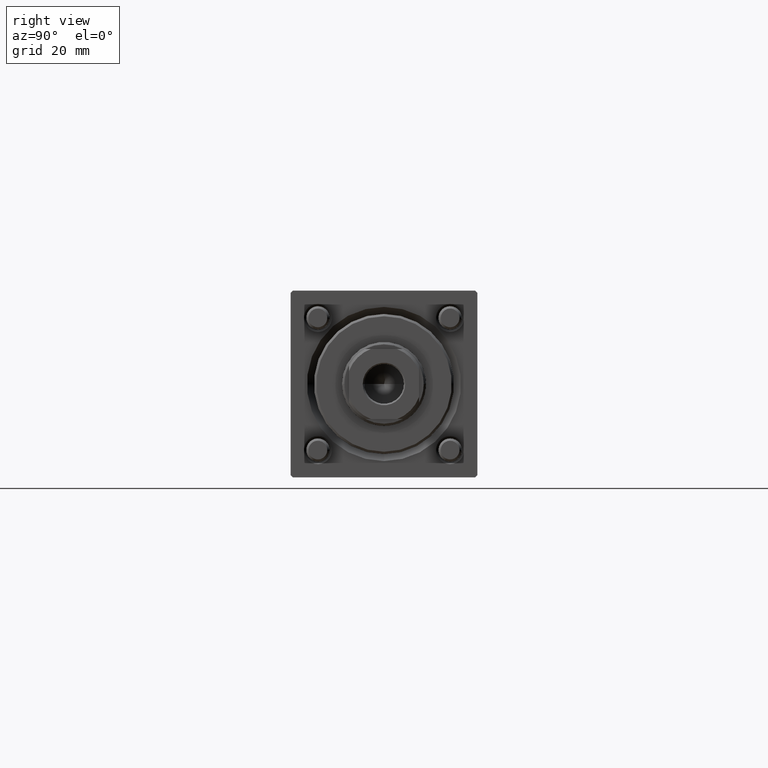
[diagram: clean part render]
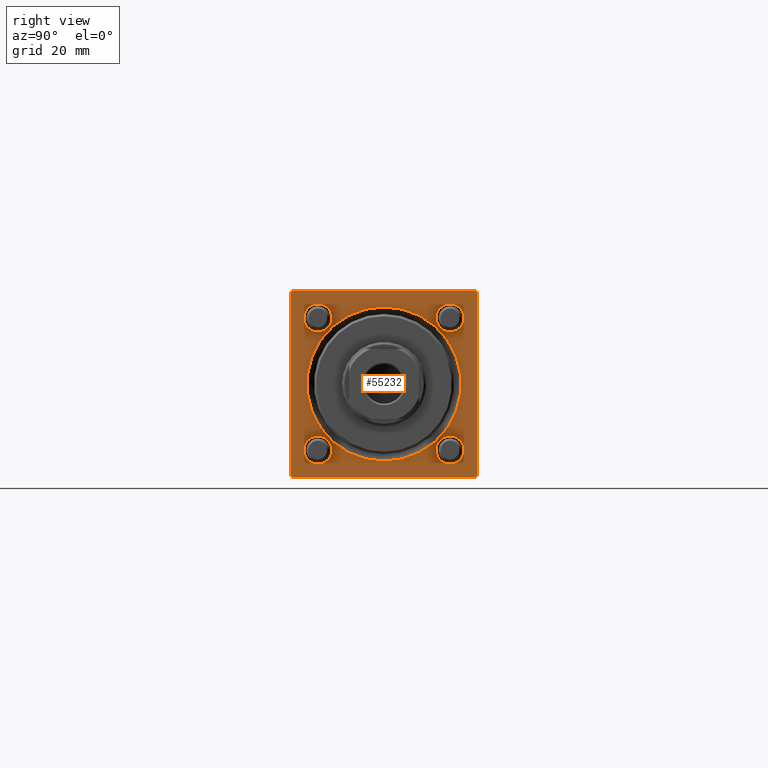
[diagram: same view with one face highlighted and labeled with its STEP entity id]
A machine part, right view. The second image highlights one B-rep face of the part: STEP entity #55232.
In plain terms, the highlighted planar face has unit normal (-1, 0, 0).
Its self-contained STEP definition (entity closure, byte-faithful):
#204 = ORIENTED_EDGE ( 'NONE', *, *, #6360, .T. ) ;
#645 = VECTOR ( 'NONE', #3721, 1000.000000000000114 ) ;
#849 = LINE ( 'NONE', #48433, #48838 ) ;
#882 = CARTESIAN_POINT ( 'NONE',  ( 119.0000000000000142, 19.99999999999999645, -19.50000000000000000 ) ) ;
#1027 = DIRECTION ( 'NONE',  ( 0.000000000000000000, 0.000000000000000000, 1.000000000000000000 ) ) ;
#1237 = DIRECTION ( 'NONE',  ( 0.000000000000000000, -1.000000000000000000, 0.000000000000000000 ) ) ;
#1284 = ORIENTED_EDGE ( 'NONE', *, *, #4438, .T. ) ;
#1330 = AXIS2_PLACEMENT_3D ( 'NONE', #10284, #15444, #6270 ) ;
#1867 = DIRECTION ( 'NONE',  ( 0.000000000000000000, 0.000000000000000000, 1.000000000000000000 ) ) ;
#2755 = EDGE_CURVE ( 'NONE', #50832, #34279, #45387, .T. ) ;
#2769 = ORIENTED_EDGE ( 'NONE', *, *, #5093, .T. ) ;
#2804 = AXIS2_PLACEMENT_3D ( 'NONE', #39781, #31194, #35772 ) ;
#3147 = CARTESIAN_POINT ( 'NONE',  ( 119.0000000000000142, 2.020667218593134678E-15, 16.50000000000001421 ) ) ;
#3721 = DIRECTION ( 'NONE',  ( -0.000000000000000000, -0.7071067811865573427, -0.7071067811865376918 ) ) ;
#3848 = CARTESIAN_POINT ( 'NONE',  ( 119.0000000000000142, 19.99999999999999645, 19.49999999999998579 ) ) ;
#4438 = EDGE_CURVE ( 'NONE', #40831, #50957, #31784, .T. ) ;
#4721 = EDGE_CURVE ( 'NONE', #40548, #52994, #23349, .T. ) ;
#4925 = CIRCLE ( 'NONE', #52507, 3.000000000000000888 ) ;
#5093 = EDGE_CURVE ( 'NONE', #52994, #40548, #49873, .T. ) ;
#5161 = EDGE_CURVE ( 'NONE', #22265, #24074, #36148, .T. ) ;
#5609 = DIRECTION ( 'NONE',  ( -1.000000000000000000, -0.000000000000000000, -0.000000000000000000 ) ) ;
#5864 = EDGE_LOOP ( 'NONE', ( #1284, #21520, #11909, #17155, #53225, #44169, #54703, #28304 ) ) ;
#5943 = AXIS2_PLACEMENT_3D ( 'NONE', #6963, #37352, #41933 ) ;
#6270 = DIRECTION ( 'NONE',  ( -0.000000000000000000, 0.000000000000000000, 1.000000000000000000 ) ) ;
#6360 = EDGE_CURVE ( 'NONE', #43969, #17489, #30686, .T. ) ;
#6963 = CARTESIAN_POINT ( 'NONE',  ( 119.0000000000000142, -14.15000000000000036, -14.15000000000000036 ) ) ;
#7082 = EDGE_LOOP ( 'NONE', ( #29790, #25498 ) ) ;
#7116 = DIRECTION ( 'NONE',  ( 0.000000000000000000, 0.000000000000000000, 1.000000000000000000 ) ) ;
#7696 = CIRCLE ( 'NONE', #23241, 2.999999999999973355 ) ;
#7965 = AXIS2_PLACEMENT_3D ( 'NONE', #37493, #28903, #24035 ) ;
#8257 = EDGE_CURVE ( 'NONE', #26332, #53663, #55467, .T. ) ;
#8273 = CARTESIAN_POINT ( 'NONE',  ( 119.0000000000000142, 19.49999999999996803, 20.00000000000000000 ) ) ;
#8445 = CARTESIAN_POINT ( 'NONE',  ( 119.0000000000000142, 14.15000000000000036, 14.15000000000000036 ) ) ;
#8474 = VECTOR ( 'NONE', #21752, 999.9999999999998863 ) ;
#8668 = VERTEX_POINT ( 'NONE', #28142 ) ;
#9524 = ORIENTED_EDGE ( 'NONE', *, *, #21848, .T. ) ;
#9587 = CARTESIAN_POINT ( 'NONE',  ( 119.0000000000000142, -14.15000000000000036, 17.14999999999997726 ) ) ;
#9679 = EDGE_CURVE ( 'NONE', #27303, #50281, #46410, .T. ) ;
#10261 = CARTESIAN_POINT ( 'NONE',  ( 119.0000000000000142, -20.00000000000000355, 19.50000000000002487 ) ) ;
#10284 = CARTESIAN_POINT ( 'NONE',  ( 119.0000000000000142, 0.000000000000000000, 0.000000000000000000 ) ) ;
#10649 = AXIS2_PLACEMENT_3D ( 'NONE', #8445, #38561, #29968 ) ;
#11909 = ORIENTED_EDGE ( 'NONE', *, *, #2755, .F. ) ;
#11927 = DIRECTION ( 'NONE',  ( 0.000000000000000000, 0.000000000000000000, 1.000000000000000000 ) ) ;
#12417 = ORIENTED_EDGE ( 'NONE', *, *, #9679, .T. ) ;
#12494 = CARTESIAN_POINT ( 'NONE',  ( 119.0000000000000142, 14.15000000000000036, 14.15000000000000036 ) ) ;
#13400 = VECTOR ( 'NONE', #48114, 1000.000000000000000 ) ;
#14292 = EDGE_CURVE ( 'NONE', #50281, #27303, #17265, .T. ) ;
#15444 = DIRECTION ( 'NONE',  ( -1.000000000000000000, 0.000000000000000000, -0.000000000000000000 ) ) ;
#15722 = FACE_OUTER_BOUND ( 'NONE', #5864, .T. ) ;
#15927 = ORIENTED_EDGE ( 'NONE', *, *, #51655, .T. ) ;
#16691 = DIRECTION ( 'NONE',  ( -1.000000000000000000, -0.000000000000000000, -0.000000000000000000 ) ) ;
#17155 = ORIENTED_EDGE ( 'NONE', *, *, #18303, .T. ) ;
#17226 = AXIS2_PLACEMENT_3D ( 'NONE', #30977, #16691, #34166 ) ;
#17265 = CIRCLE ( 'NONE', #17226, 3.000000000000004441 ) ;
#17489 = VERTEX_POINT ( 'NONE', #50474 ) ;
#18303 = EDGE_CURVE ( 'NONE', #50832, #24074, #28347, .T. ) ;
#18829 = EDGE_CURVE ( 'NONE', #48919, #8668, #38498, .T. ) ;
#19521 = CARTESIAN_POINT ( 'NONE',  ( 119.0000000000000142, 19.99999999999999645, 20.00000000000000000 ) ) ;
#20617 = VECTOR ( 'NONE', #28139, 1000.000000000000000 ) ;
#21097 = DIRECTION ( 'NONE',  ( -1.000000000000000000, -0.000000000000000000, -0.000000000000000000 ) ) ;
#21520 = ORIENTED_EDGE ( 'NONE', *, *, #38042, .T. ) ;
#21679 = CARTESIAN_POINT ( 'NONE',  ( 119.0000000000000142, 14.15000000000000036, 17.15000000000000568 ) ) ;
#21752 = DIRECTION ( 'NONE',  ( 0.000000000000000000, -0.7071067811865574537, 0.7071067811865376918 ) ) ;
#21848 = EDGE_CURVE ( 'NONE', #17489, #43969, #33000, .T. ) ;
#21925 = VECTOR ( 'NONE', #37924, 1000.000000000000000 ) ;
#22265 = VERTEX_POINT ( 'NONE', #3848 ) ;
#22839 = CARTESIAN_POINT ( 'NONE',  ( 119.0000000000000142, -14.15000000000000036, -14.15000000000000036 ) ) ;
#22903 = CARTESIAN_POINT ( 'NONE',  ( 119.0000000000000142, -14.15000000000000036, 11.15000000000002700 ) ) ;
#23054 = CARTESIAN_POINT ( 'NONE',  ( 119.0000000000000142, 19.99999999999999645, -20.00000000000000000 ) ) ;
#23241 = AXIS2_PLACEMENT_3D ( 'NONE', #35717, #5609, #1867 ) ;
#23349 = CIRCLE ( 'NONE', #55376, 3.000000000000004441 ) ;
#23434 = ORIENTED_EDGE ( 'NONE', *, *, #4721, .T. ) ;
#23435 = DIRECTION ( 'NONE',  ( 0.000000000000000000, 0.000000000000000000, 1.000000000000000000 ) ) ;
#23494 = FACE_BOUND ( 'NONE', #7082, .T. ) ;
#24035 = DIRECTION ( 'NONE',  ( 0.000000000000000000, 0.000000000000000000, 1.000000000000000000 ) ) ;
#24074 = VERTEX_POINT ( 'NONE', #26196 ) ;
#24510 = CARTESIAN_POINT ( 'NONE',  ( 119.0000000000000142, 14.15000000000000036, -11.14999999999999680 ) ) ;
#24640 = AXIS2_PLACEMENT_3D ( 'NONE', #38638, #47236, #7116 ) ;
#24880 = CARTESIAN_POINT ( 'NONE',  ( 119.0000000000000142, 19.49999999999999645, -20.00000000000000000 ) ) ;
#25498 = ORIENTED_EDGE ( 'NONE', *, *, #8257, .T. ) ;
#26196 = CARTESIAN_POINT ( 'NONE',  ( 119.0000000000000142, 19.99999999999999645, -19.50000000000000000 ) ) ;
#26332 = VERTEX_POINT ( 'NONE', #21679 ) ;
#27303 = VERTEX_POINT ( 'NONE', #39698 ) ;
#28139 = DIRECTION ( 'NONE',  ( 0.000000000000000000, 0.000000000000000000, -1.000000000000000000 ) ) ;
#28142 = CARTESIAN_POINT ( 'NONE',  ( 119.0000000000000142, -19.50000000000001776, 19.99999999999999645 ) ) ;
#28304 = ORIENTED_EDGE ( 'NONE', *, *, #48235, .T. ) ;
#28347 = LINE ( 'NONE', #882, #34720 ) ;
#28364 = EDGE_LOOP ( 'NONE', ( #9524, #204 ) ) ;
#28428 = CARTESIAN_POINT ( 'NONE',  ( 119.0000000000000142, 14.15000000000000036, 11.14999999999999858 ) ) ;
#28903 = DIRECTION ( 'NONE',  ( -1.000000000000000000, -0.000000000000000000, -0.000000000000000000 ) ) ;
#29060 = CARTESIAN_POINT ( 'NONE',  ( 119.0000000000000142, 19.99999999999999645, 20.00000000000000000 ) ) ;
#29491 = CARTESIAN_POINT ( 'NONE',  ( 119.0000000000000142, -14.15000000000000036, -11.14999999999999680 ) ) ;
#29790 = ORIENTED_EDGE ( 'NONE', *, *, #52420, .T. ) ;
#29968 = DIRECTION ( 'NONE',  ( 0.000000000000000000, 0.000000000000000000, 1.000000000000000000 ) ) ;
#30067 = LINE ( 'NONE', #8273, #8474 ) ;
#30559 = CARTESIAN_POINT ( 'NONE',  ( 119.0000000000000142, -19.50000000000002487, -20.00000000000000000 ) ) ;
#30686 = CIRCLE ( 'NONE', #31637, 16.50000000000001421 ) ;
#30737 = VECTOR ( 'NONE', #1237, 1000.000000000000000 ) ;
#30977 = CARTESIAN_POINT ( 'NONE',  ( 119.0000000000000142, 14.15000000000000036, -14.15000000000000036 ) ) ;
#31176 = ORIENTED_EDGE ( 'NONE', *, *, #14292, .T. ) ;
#31194 = DIRECTION ( 'NONE',  ( -1.000000000000000000, -0.000000000000000000, -0.000000000000000000 ) ) ;
#31637 = AXIS2_PLACEMENT_3D ( 'NONE', #36033, #35465, #23435 ) ;
#31784 = LINE ( 'NONE', #52417, #13400 ) ;
#31823 = DIRECTION ( 'NONE',  ( 0.000000000000000000, 0.7071067811865376918, -0.7071067811865574537 ) ) ;
#32219 = EDGE_CURVE ( 'NONE', #22265, #48919, #30067, .T. ) ;
#32232 = EDGE_LOOP ( 'NONE', ( #15927, #51964 ) ) ;
#33000 = CIRCLE ( 'NONE', #2804, 16.50000000000001421 ) ;
#34166 = DIRECTION ( 'NONE',  ( 0.000000000000000000, 0.000000000000000000, 1.000000000000000000 ) ) ;
#34279 = VERTEX_POINT ( 'NONE', #30559 ) ;
#34720 = VECTOR ( 'NONE', #46092, 1000.000000000000114 ) ;
#35465 = DIRECTION ( 'NONE',  ( -1.000000000000000000, -0.000000000000000000, -0.000000000000000000 ) ) ;
#35717 = CARTESIAN_POINT ( 'NONE',  ( 119.0000000000000142, -14.15000000000000036, 14.15000000000000036 ) ) ;
#35772 = DIRECTION ( 'NONE',  ( 0.000000000000000000, 0.000000000000000000, 1.000000000000000000 ) ) ;
#36033 = CARTESIAN_POINT ( 'NONE',  ( 119.0000000000000142, 0.000000000000000000, 0.000000000000000000 ) ) ;
#36148 = LINE ( 'NONE', #19521, #20617 ) ;
#37352 = DIRECTION ( 'NONE',  ( -1.000000000000000000, -0.000000000000000000, -0.000000000000000000 ) ) ;
#37493 = CARTESIAN_POINT ( 'NONE',  ( 119.0000000000000142, 14.15000000000000036, -14.15000000000000036 ) ) ;
#37924 = DIRECTION ( 'NONE',  ( 0.000000000000000000, -1.000000000000000000, -8.673617379884035472E-17 ) ) ;
#38042 = EDGE_CURVE ( 'NONE', #50957, #34279, #849, .T. ) ;
#38498 = LINE ( 'NONE', #29060, #21925 ) ;
#38561 = DIRECTION ( 'NONE',  ( -1.000000000000000000, -0.000000000000000000, -0.000000000000000000 ) ) ;
#38638 = CARTESIAN_POINT ( 'NONE',  ( 119.0000000000000142, -14.15000000000000036, 14.15000000000000036 ) ) ;
#39265 = CIRCLE ( 'NONE', #24640, 2.999999999999973355 ) ;
#39698 = CARTESIAN_POINT ( 'NONE',  ( 119.0000000000000142, 14.15000000000000036, -17.15000000000000568 ) ) ;
#39781 = CARTESIAN_POINT ( 'NONE',  ( 119.0000000000000142, 0.000000000000000000, 0.000000000000000000 ) ) ;
#40302 = DIRECTION ( 'NONE',  ( -1.000000000000000000, -0.000000000000000000, -0.000000000000000000 ) ) ;
#40548 = VERTEX_POINT ( 'NONE', #40699 ) ;
#40699 = CARTESIAN_POINT ( 'NONE',  ( 119.0000000000000142, -14.15000000000000036, -17.15000000000000568 ) ) ;
#40831 = VERTEX_POINT ( 'NONE', #10261 ) ;
#41517 = PLANE ( 'NONE',  #1330 ) ;
#41541 = VERTEX_POINT ( 'NONE', #22903 ) ;
#41806 = FACE_BOUND ( 'NONE', #28364, .T. ) ;
#41933 = DIRECTION ( 'NONE',  ( 0.000000000000000000, 0.000000000000000000, 1.000000000000000000 ) ) ;
#43001 = LINE ( 'NONE', #51028, #645 ) ;
#43969 = VERTEX_POINT ( 'NONE', #3147 ) ;
#44014 = CARTESIAN_POINT ( 'NONE',  ( 119.0000000000000142, -20.00000000000000000, -19.50000000000001066 ) ) ;
#44169 = ORIENTED_EDGE ( 'NONE', *, *, #32219, .T. ) ;
#45383 = CARTESIAN_POINT ( 'NONE',  ( 119.0000000000000142, 19.49999999999996803, 20.00000000000000000 ) ) ;
#45387 = LINE ( 'NONE', #23054, #30737 ) ;
#46092 = DIRECTION ( 'NONE',  ( -0.000000000000000000, 0.7071067811865474617, 0.7071067811865474617 ) ) ;
#46410 = CIRCLE ( 'NONE', #7965, 3.000000000000004441 ) ;
#47236 = DIRECTION ( 'NONE',  ( -1.000000000000000000, -0.000000000000000000, -0.000000000000000000 ) ) ;
#48114 = DIRECTION ( 'NONE',  ( 0.000000000000000000, 8.673617379884036705E-17, -1.000000000000000000 ) ) ;
#48235 = EDGE_CURVE ( 'NONE', #8668, #40831, #43001, .T. ) ;
#48433 = CARTESIAN_POINT ( 'NONE',  ( 119.0000000000000142, -19.50000000000002487, -20.00000000000000000 ) ) ;
#48569 = EDGE_LOOP ( 'NONE', ( #23434, #2769 ) ) ;
#48838 = VECTOR ( 'NONE', #31823, 999.9999999999998863 ) ;
#48919 = VERTEX_POINT ( 'NONE', #45383 ) ;
#49174 = EDGE_CURVE ( 'NONE', #56476, #41541, #39265, .T. ) ;
#49873 = CIRCLE ( 'NONE', #5943, 3.000000000000004441 ) ;
#50281 = VERTEX_POINT ( 'NONE', #24510 ) ;
#50391 = FACE_BOUND ( 'NONE', #48569, .T. ) ;
#50474 = CARTESIAN_POINT ( 'NONE',  ( 119.0000000000000142, 0.000000000000000000, -16.50000000000001421 ) ) ;
#50674 = FACE_BOUND ( 'NONE', #32232, .T. ) ;
#50832 = VERTEX_POINT ( 'NONE', #24880 ) ;
#50957 = VERTEX_POINT ( 'NONE', #44014 ) ;
#51028 = CARTESIAN_POINT ( 'NONE',  ( 119.0000000000000142, -20.00000000000000355, 19.50000000000002487 ) ) ;
#51655 = EDGE_CURVE ( 'NONE', #41541, #56476, #7696, .T. ) ;
#51964 = ORIENTED_EDGE ( 'NONE', *, *, #49174, .T. ) ;
#52417 = CARTESIAN_POINT ( 'NONE',  ( 119.0000000000000142, -20.00000000000000355, 19.99999999999999645 ) ) ;
#52420 = EDGE_CURVE ( 'NONE', #53663, #26332, #4925, .T. ) ;
#52507 = AXIS2_PLACEMENT_3D ( 'NONE', #12494, #21097, #11927 ) ;
#52994 = VERTEX_POINT ( 'NONE', #29491 ) ;
#53225 = ORIENTED_EDGE ( 'NONE', *, *, #5161, .F. ) ;
#53663 = VERTEX_POINT ( 'NONE', #28428 ) ;
#54586 = EDGE_LOOP ( 'NONE', ( #12417, #31176 ) ) ;
#54703 = ORIENTED_EDGE ( 'NONE', *, *, #18829, .T. ) ;
#54985 = FACE_BOUND ( 'NONE', #54586, .T. ) ;
#55232 = ADVANCED_FACE ( 'NONE', ( #50391, #54985, #23494, #50674, #41806, #15722 ), #41517, .F. ) ;
#55376 = AXIS2_PLACEMENT_3D ( 'NONE', #22839, #40302, #1027 ) ;
#55467 = CIRCLE ( 'NONE', #10649, 3.000000000000000888 ) ;
#56476 = VERTEX_POINT ( 'NONE', #9587 ) ;